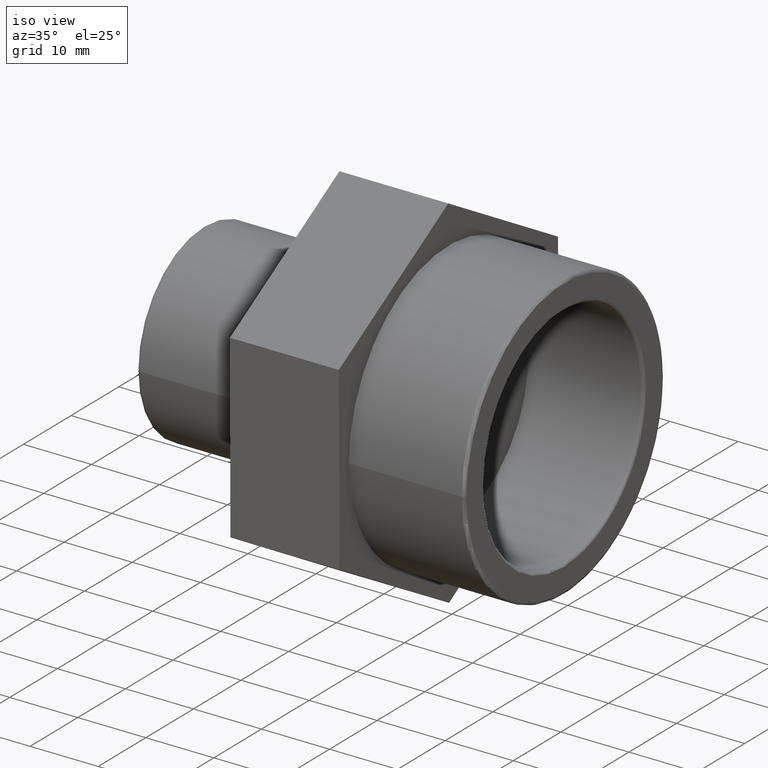
[diagram: clean part render]
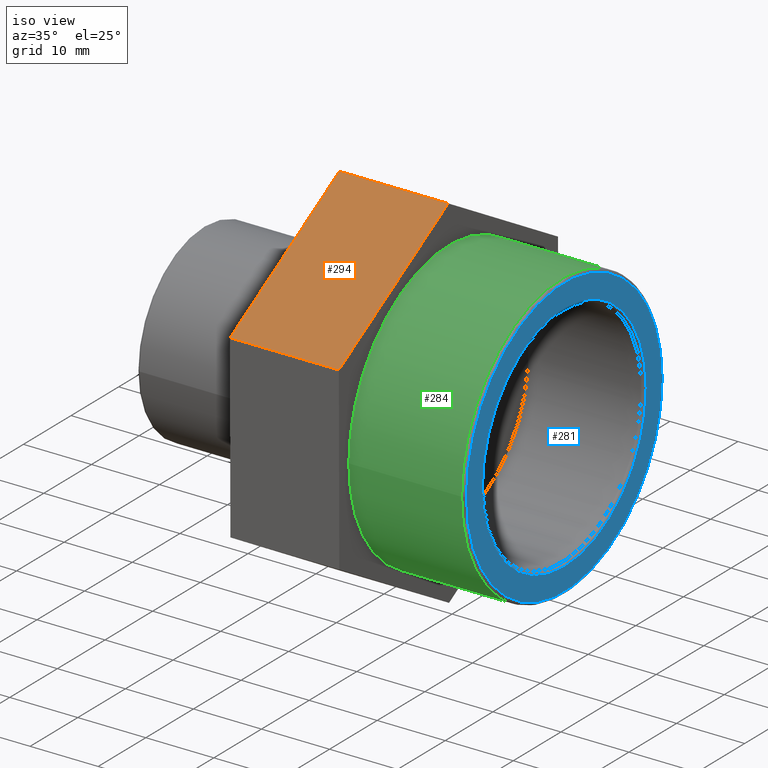
[diagram: same view with three faces highlighted in distinct colors, each labeled with its STEP entity id]
A machine part, iso view with three faces highlighted in distinct colors.
Their STEP definitions:

[orange] entity #294 — the highlighted planar face has unit normal (0, -0.5026, 0.8645).
#18=LINE('',#471,#36);
#26=LINE('',#489,#44);
#29=LINE('',#494,#47);
#30=LINE('',#495,#48);
#36=VECTOR('',#389,16.);
#44=VECTOR('',#403,16.);
#47=VECTOR('',#408,26.5581123827228);
#48=VECTOR('',#409,26.5581123827228);
#62=PLANE('',#329);
#97=FACE_OUTER_BOUND('',#128,.T.);
#128=EDGE_LOOP('',(#248,#249,#250,#251));
#166=VERTEX_POINT('',#464);
#169=VERTEX_POINT('',#469);
#175=VERTEX_POINT('',#486);
#176=VERTEX_POINT('',#488);
#195=EDGE_CURVE('',#169,#166,#18,.T.);
#203=EDGE_CURVE('',#176,#175,#26,.T.);
#206=EDGE_CURVE('',#175,#166,#29,.T.);
#207=EDGE_CURVE('',#169,#176,#30,.T.);
#248=ORIENTED_EDGE('',*,*,#206,.T.);
#249=ORIENTED_EDGE('',*,*,#195,.F.);
#250=ORIENTED_EDGE('',*,*,#207,.T.);
#251=ORIENTED_EDGE('',*,*,#203,.T.);
#294=ADVANCED_FACE('',(#97),#62,.T.);
#329=AXIS2_PLACEMENT_3D('',#493,#406,#407);
#389=DIRECTION('',(-1.,-1.85037170770859E-16,0.));
#403=DIRECTION('',(-1.,-1.85037170770859E-16,0.));
#406=DIRECTION('center_axis',(9.29930274188912E-17,-0.502564036358129,0.864539987137336));
#407=DIRECTION('ref_axis',(-1.77635683940025E-16,0.864539987137336,0.502564036358129));
#408=DIRECTION('',(1.58813419197395E-16,-0.864539987137336,-0.502564036358129));
#409=DIRECTION('',(-1.58813419197395E-16,0.864539987137336,0.502564036358129));
#464=CARTESIAN_POINT('',(-6.49999999999999,-23.0392479051126,13.2108436256017));
#469=CARTESIAN_POINT('',(9.50000000000001,-23.0392479051126,13.2108436256017));
#471=CARTESIAN_POINT('',(9.50000000000001,-23.0392479051126,13.2108436256017));
#486=CARTESIAN_POINT('',(-6.5,-0.0786977673614346,26.5579957827157));
#488=CARTESIAN_POINT('',(9.50000000000001,-0.0786977673614316,26.5579957827157));
#489=CARTESIAN_POINT('',(9.50000000000001,-0.0786977673614316,26.5579957827157));
#493=CARTESIAN_POINT('Origin',(9.50000000000001,-23.0392479051126,13.2108436256017));
#494=CARTESIAN_POINT('',(-6.49999999999999,-17.2991103706748,16.5476316648802));
#495=CARTESIAN_POINT('',(9.50000000000001,-23.0392479051126,13.2108436256017));

[blue] entity #281 — the highlighted planar face has unit normal (1, 0, 0).
#56=PLANE('',#306);
#69=FACE_BOUND('',#107,.T.);
#84=FACE_OUTER_BOUND('',#106,.T.);
#106=EDGE_LOOP('',(#214));
#107=EDGE_LOOP('',(#215));
#141=CIRCLE('',#305,17.1831);
#142=CIRCLE('',#307,20.5359);
#155=VERTEX_POINT('',#432);
#156=VERTEX_POINT('',#435);
#181=EDGE_CURVE('',#155,#155,#141,.T.);
#182=EDGE_CURVE('',#156,#156,#142,.T.);
#214=ORIENTED_EDGE('',*,*,#182,.F.);
#215=ORIENTED_EDGE('',*,*,#181,.F.);
#281=ADVANCED_FACE('',(#84,#69),#56,.T.);
#305=AXIS2_PLACEMENT_3D('',#433,#344,#345);
#306=AXIS2_PLACEMENT_3D('',#434,#346,#347);
#307=AXIS2_PLACEMENT_3D('',#436,#348,#349);
#344=DIRECTION('center_axis',(1.,1.83697019872103E-16,0.));
#345=DIRECTION('ref_axis',(-1.83697019872103E-16,1.,6.12323399573677E-17));
#346=DIRECTION('center_axis',(1.,1.83697019872103E-16,0.));
#347=DIRECTION('ref_axis',(0.,0.,-1.));
#348=DIRECTION('center_axis',(-1.,-1.83697019872103E-16,0.));
#349=DIRECTION('ref_axis',(-1.83697019872103E-16,1.,6.12323399573677E-17));
#432=CARTESIAN_POINT('',(26.5,-17.1831,-3.15648426216433E-15));
#433=CARTESIAN_POINT('Origin',(26.5,9.73594205322146E-15,0.));
#434=CARTESIAN_POINT('Origin',(26.5,-20.955,0.));
#435=CARTESIAN_POINT('',(26.5,-20.5359,1.25746121013051E-15));
#436=CARTESIAN_POINT('Origin',(26.5,9.73594205322146E-15,0.));

[green] entity #284 — the highlighted cylindrical surface (bore or boss wall) has radius 20.955 mm, axis along (-1, -0, 0).
#52=CYLINDRICAL_SURFACE('',#312,20.955);
#72=FACE_BOUND('',#113,.T.);
#87=FACE_OUTER_BOUND('',#112,.T.);
#112=EDGE_LOOP('',(#220));
#113=EDGE_LOOP('',(#221));
#144=CIRCLE('',#311,20.955);
#145=CIRCLE('',#313,20.955);
#158=VERTEX_POINT('',#441);
#159=VERTEX_POINT('',#444);
#184=EDGE_CURVE('',#158,#158,#144,.T.);
#185=EDGE_CURVE('',#159,#159,#145,.T.);
#220=ORIENTED_EDGE('',*,*,#185,.F.);
#221=ORIENTED_EDGE('',*,*,#184,.F.);
#284=ADVANCED_FACE('',(#87,#72),#52,.T.);
#311=AXIS2_PLACEMENT_3D('',#442,#356,#357);
#312=AXIS2_PLACEMENT_3D('',#443,#358,#359);
#313=AXIS2_PLACEMENT_3D('',#445,#360,#361);
#356=DIRECTION('center_axis',(1.,1.83697019872103E-16,0.));
#357=DIRECTION('ref_axis',(-1.82123199577618E-16,1.,6.12323399573677E-17));
#358=DIRECTION('center_axis',(-1.,-1.83697019872103E-16,0.));
#359=DIRECTION('ref_axis',(2.38360372416973E-16,-1.,0.));
#360=DIRECTION('center_axis',(-1.,-1.83697019872103E-16,0.));
#361=DIRECTION('ref_axis',(0.,0.,1.));
#441=CARTESIAN_POINT('',(26.0809,-20.955,-3.84937105141992E-15));
#442=CARTESIAN_POINT('Origin',(26.0809,9.65895463219306E-15,0.));
#443=CARTESIAN_POINT('Origin',(18.,8.17451738430859E-15,0.));
#444=CARTESIAN_POINT('',(9.50000000000001,-20.955,0.));
#445=CARTESIAN_POINT('Origin',(9.5,6.61309271539571E-15,0.));